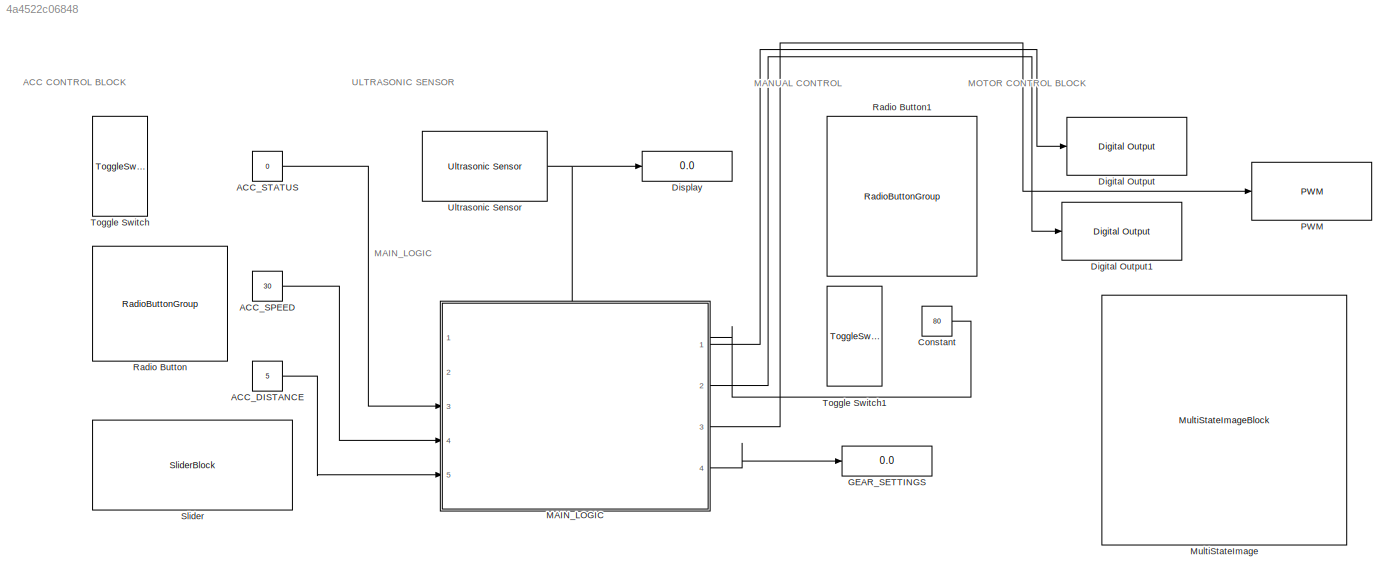
MODEL slx_4a4522c06848
KIND model
CONFIG AbsTol = auto
CONFIG EnableMultiTasking = off
CONFIG FixedStep = auto
CONFIG MaxStep = auto
CONFIG MinStep = auto
CONFIG RelTol = 1e-3
CONFIG SampleTimeConstraint = Unconstrained
CONFIG Solver = VariableStepAuto
CONFIG SolverName = VariableStepAuto
CONFIG StartTime = 0.0
CONFIG StopTime = inf
BLOCK [Constant] ACC_DISTANCE
  Value = 5
BLOCK [Constant] ACC_SPEED
  Value = 30
BLOCK [Constant] ACC_STATUS
  Value = 0
BLOCK [Constant] Constant
  Value = 80
BLOCK [Reference] Digital Output  REF=arduinolib/Digital Output
  Ports = [1]
  SourceBlock = arduinolib/Digital Output
  SourceProductBaseCode = ARDUINO
  SourceType = Arduino Digital Output
BLOCK [Reference] Digital Output1  REF=arduinolib/Digital Output
  Ports = [1]
  SourceBlock = arduinolib/Digital Output
  SourceProductBaseCode = ARDUINO
  SourceType = Arduino Digital Output
BLOCK [Display] Display
  Decimation = 1
  Ports = [1]
BLOCK [Display] GEAR_SETTINGS
  Decimation = 1
  Ports = [1]
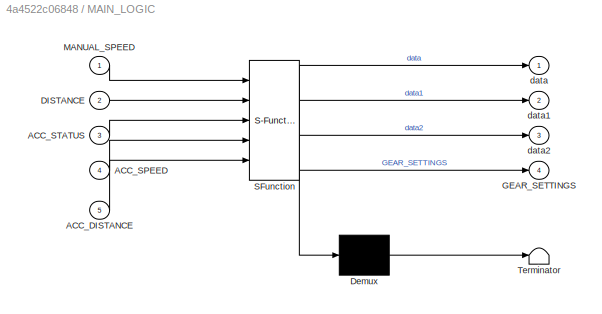
BLOCK [SubSystem] MAIN_LOGIC
  ErrorFcn = Stateflow.Translate.translate
  PermitHierarchicalResolution = ExplicitOnly
  PortSchema = {"entries":[{"content":{"sides":[{"content":{"connectorIds":["In3","In4","In5"]},"type":"ConnectorPlacement.EquallySpacedRectSide","uuid":"9577933f-3cd5-4877-b3f1-1cabc5f66bc2"},{"content":{"connectorIds":["In1","Out1","Out2","Out3","Out4"],"side":"RIGHT"},"type":"ConnectorPlacement.EquallySpacedRectSide","uuid":"2a6dc85d-fd72-47ef-ac66-14217eaecbf8"},{"content":{"connectorIds":["In2"],"side":"TOP...<+286ch>
  Ports = [5, 4]
  RequestExecContextInheritance = off
  SFBlockType = Chart
  TreatAsAtomicUnit = on
BLOCK [Demux] MAIN_LOGIC/ Demux 
  Outputs = 1
  Ports = [1, 1]
BLOCK [S-Function] MAIN_LOGIC/ SFunction 
  EnableBusSupport = on
  FunctionName = sf_sfun
  PortCounts = [5 5]
  Ports = [5, 5]
  SFcnIsStateOwnerBlock = off
  SFunctionDeploymentMode = off
  Tag = Stateflow S-Function 3
BLOCK [Terminator] MAIN_LOGIC/ Terminator 
BLOCK [Inport] MAIN_LOGIC/ACC_DISTANCE
  Port = 5
BLOCK [Inport] MAIN_LOGIC/ACC_SPEED
  Port = 4
BLOCK [Inport] MAIN_LOGIC/ACC_STATUS
  Port = 3
BLOCK [Inport] MAIN_LOGIC/DISTANCE
  Port = 2
BLOCK [Outport] MAIN_LOGIC/GEAR_SETTINGS
  Port = 4
BLOCK [Inport] MAIN_LOGIC/MANUAL_SPEED
BLOCK [Outport] MAIN_LOGIC/data
BLOCK [Outport] MAIN_LOGIC/data1
  Port = 2
BLOCK [Outport] MAIN_LOGIC/data2
  Port = 3
BLOCK [MultiStateImageBlock] MultiStateImage
BLOCK [Reference] PWM  REF=arduinolib/PWM
  Ports = [1]
  SourceBlock = arduinolib/PWM
  SourceProductBaseCode = ARDUINO
  SourceType = Arduino PWM
BLOCK [RadioButtonGroup] Radio Button
  ButtonGroupName = Group
  SelectedLabel = 30 KMPH
BLOCK [RadioButtonGroup] Radio Button1
  ButtonGroupName = Group
  SelectedLabel = 80 KMPH
BLOCK [SliderBlock] Slider
  ScaleMax = 10
  ScaleMin = 5
  TickInterval = 1
BLOCK [ToggleSwitchBlock] Toggle Switch
BLOCK [ToggleSwitchBlock] Toggle Switch1
BLOCK [Reference] Ultrasonic Sensor  REF=arduinosensorlib/Ultrasonic Sensor
  Ports = [0, 1]
  SourceBlock = arduinosensorlib/Ultrasonic Sensor
  SourceProductBaseCode = ARDUINO
  SourceType = Arduino Ultrasonic Sensor
ANNOTATION (root): ACC CONTROL BLOCK
ANNOTATION (root): MAIN_LOGIC
ANNOTATION (root): MANUAL CONTROL
ANNOTATION (root): MOTOR CONTROL BLOCK
ANNOTATION (root): ULTRASONIC SENSOR
LINE ACC_DISTANCE:1 -> MAIN_LOGIC:5
LINE ACC_SPEED:1 -> MAIN_LOGIC:4
LINE ACC_STATUS:1 -> MAIN_LOGIC:3
LINE Constant:1 -> MAIN_LOGIC:1
LINE MAIN_LOGIC:1 -> Digital Output:1
LINE MAIN_LOGIC:2 -> Digital Output1:1
LINE MAIN_LOGIC:3 -> PWM:1
LINE MAIN_LOGIC:4 -> GEAR_SETTINGS:1
NET Ultrasonic Sensor:1 -> Display:1, MAIN_LOGIC:2
note: NET lines group one-source signal fan-out (src -> all destinations, sorted); 1:1 wires keep LINE
CHART MAIN_LOGIC states=10 transitions=21
  STATE_LABEL 'ADAPTIVE_CONTROL_ACTIVE\nentry:\n'
  STATE_LABEL 'ZERO_GEAR_STATE\nentry:\nGEAR_SETTINGS = 0;\n'
  STATE_LABEL 'FRIST_GEAR_STATE\nentry:\nGEAR_SETTINGS = 1;\n'
  STATE_LABEL 'SECOND_GEAR_STATE\nentry:\nGEAR_SETTINGS = 2;'
  STATE_LABEL 'BREAKING_STATE\nentry:\nGEAR_SETTINGS = 3;'
  STATE_LABEL '[ACC_SPEED<=40]'
  STATE_LABEL '[ACC_SPEED<=40]'
  STATE_LABEL '[ACC_SPEED<=40]'
  STATE_LABEL 'ZERO_GEAR_STATE\nentry:\nGEAR_SETTINGS = 0;\n'
  STATE_LABEL 'FRIST_GEAR_STATE\nentry:\nGEAR_SETTINGS = 1;\n'
  STATE_LABEL 'SECOND_GEAR_STATE\nentry:\nGEAR_SETTINGS = 2;'
  STATE_LABEL 'BREAKING_STATE\nentry:\nGEAR_SETTINGS = 3;'
  STATE_LABEL 'ADAPTIVE_CONTROL_INACTIVE\nentry:\n'
  STATE_LABEL 'ZERO_GEAR_STATE\nentry:\nGEAR_SETTINGS = 0;\n'
  STATE_LABEL 'FRIST_GEAR_STATE\nentry:\nGEAR_SETTINGS = 1;\n'
  STATE_LABEL 'SECOND_GEAR_STATE\nentry:\nGEAR_SETTINGS = 2;'
  STATE_LABEL 'BREAKING_STATE\nentry:\nGEAR_SETTINGS = 3;\n'
  STATE_LABEL '[MANUAL_SPEED == 120]'
  STATE_LABEL '[(MANUAL_SPEED == 40) || (MANUAL_SPEED == 80)]'
  STATE_LABEL '[MANUAL_SPEED == 160]'
  STATE_LABEL '[MANUAL_SPEED == 120]'
  STATE_LABEL '[(MANUAL_SPEED == 40) || (MANUAL_SPEED == 80)]'
  STATE_LABEL '[MANUAL_SPEED == 160]'
  STATE_LABEL '[(MANUAL_SPEED == 40) || (MANUAL_SPEED == 80)]'
  STATE_LABEL '[MANUAL_SPEED == 160]'
  STATE_LABEL '[MANUAL_SPEED == 120]'
  STATE_LABEL '[MANUAL_SPEED == 160]'
  STATE_LABEL '[MANUAL_SPEED == 160]'
  STATE_LABEL '[MANUAL_SPEED == 160]'
  STATE_LABEL 'ZERO_GEAR_STATE\nentry:\nGEAR_SETTINGS = 0;\n'
  STATE_LABEL 'FRIST_GEAR_STATE\nentry:\nGEAR_SETTINGS = 1;\n'
  STATE_LABEL 'SECOND_GEAR_STATE\nentry:\nGEAR_SETTINGS = 2;'
  STATE_LABEL 'BREAKING_STATE\nentry:\nGEAR_SETTINGS = 3;\n'
CHART  states=0 transitions=0
